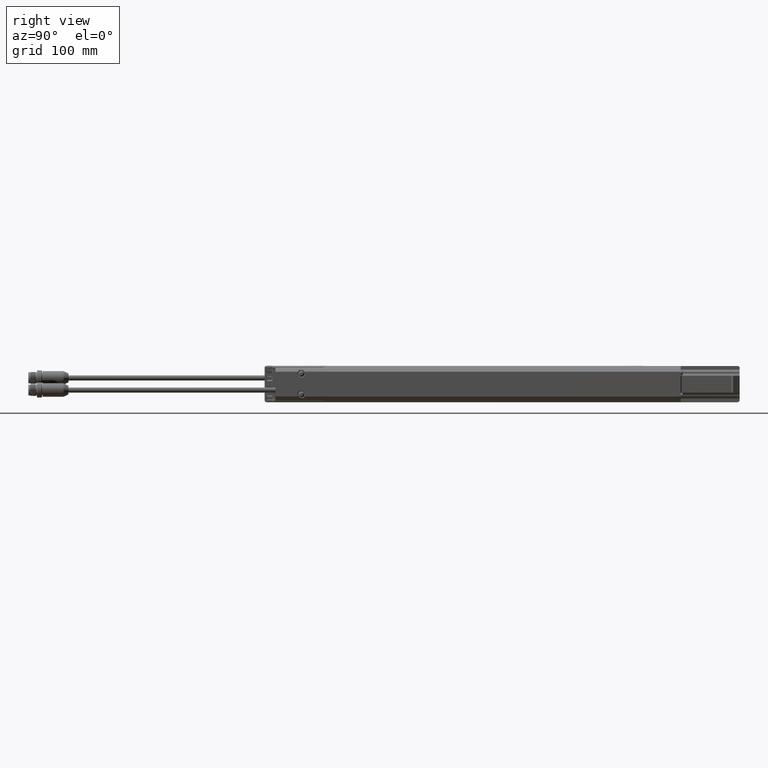
[diagram: clean part render]
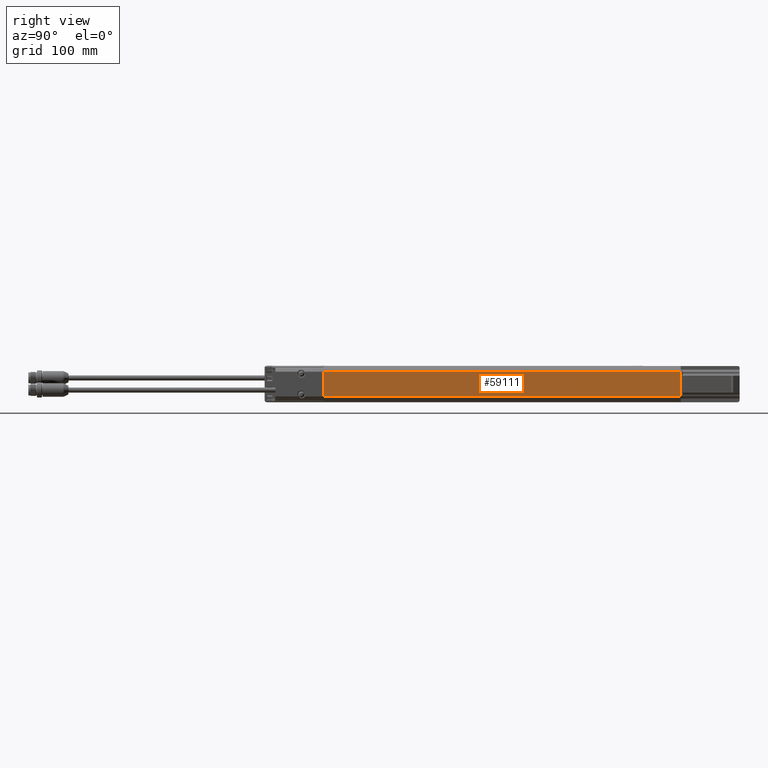
[diagram: same view with one face highlighted and labeled with its STEP entity id]
A machine part, right view. The second image highlights one B-rep face of the part: STEP entity #59111.
In plain terms, the highlighted planar face has unit normal (1, 0, -0).
Its self-contained STEP definition (entity closure, byte-faithful):
#860 = EDGE_CURVE ( 'NONE', #84002, #53982, #82082, .T. ) ;
#4956 = CARTESIAN_POINT ( 'NONE',  ( 2.996062992124106650, 123.2480314960629926, 3.496765431890256289E-14 ) ) ;
#6188 = VERTEX_POINT ( 'NONE', #10072 ) ;
#6625 = DIRECTION ( 'NONE',  ( 1.526109387071235061E-14, -1.000000000000000000, 0.000000000000000000 ) ) ;
#6960 = LINE ( 'NONE', #38361, #20296 ) ;
#7590 = CARTESIAN_POINT ( 'NONE',  ( 2.996062937078350252, 6.793854800375255465, 0.4682873029692488087 ) ) ;
#8476 = CARTESIAN_POINT ( 'NONE',  ( 2.996062992125886115, 6.793854800215196832, 0.6889763779527934284 ) ) ;
#10072 = CARTESIAN_POINT ( 'NONE',  ( 2.996062895803826898, -6.792909963083897829, -0.4682874105053118075 ) ) ;
#11366 = CARTESIAN_POINT ( 'NONE',  ( 2.996062992126090840, -6.673228346456693494, -0.6889763779527244836 ) ) ;
#11489 = LINE ( 'NONE', #22268, #16242 ) ;
#11592 = DIRECTION ( 'NONE',  ( 1.526109377512510285E-14, -0.9999999937365373626, 0.0001119237481305606404 ) ) ;
#12942 = CARTESIAN_POINT ( 'NONE',  ( 2.996062653739326898, 6.673228346456693494, 0.4670012342273386352 ) ) ;
#15767 = CARTESIAN_POINT ( 'NONE',  ( 2.996062653574204759, 6.673228356217677515, -0.4683009132287653808 ) ) ;
#16242 = VECTOR ( 'NONE', #45430, 39.37007874015748143 ) ;
#16527 = EDGE_CURVE ( 'NONE', #73742, #44368, #42466, .T. ) ;
#17998 = CARTESIAN_POINT ( 'NONE',  ( 2.996063117458444669, 6.793854799016574297, -0.4682872565978385970 ) ) ;
#18908 = ORIENTED_EDGE ( 'NONE', *, *, #21608, .F. ) ;
#19155 = VECTOR ( 'NONE', #36359, 39.37007874015748143 ) ;
#19743 = EDGE_CURVE ( 'NONE', #6188, #40399, #69393, .T. ) ;
#20296 = VECTOR ( 'NONE', #69725, 39.37007874015748143 ) ;
#21086 = VERTEX_POINT ( 'NONE', #42906 ) ;
#21608 = EDGE_CURVE ( 'NONE', #47039, #53982, #41227, .T. ) ;
#22103 = ORIENTED_EDGE ( 'NONE', *, *, #98431, .T. ) ;
#22182 = CARTESIAN_POINT ( 'NONE',  ( 2.996062992126090840, -6.713122217981614348, 0.4682963935639479769 ) ) ;
#22268 = CARTESIAN_POINT ( 'NONE',  ( 2.996062992126090840, -6.673228346456693494, -0.6889763779527244836 ) ) ;
#23406 = CARTESIAN_POINT ( 'NONE',  ( 2.996062827379771587, 6.673228346456693494, 0.4683008039302283265 ) ) ;
#23665 = DIRECTION ( 'NONE',  ( -1.526113754567195386E-14, 0.9999999936554333502, -0.0001126460530795446305 ) ) ;
#23920 = VERTEX_POINT ( 'NONE', #26520 ) ;
#23985 = CARTESIAN_POINT ( 'NONE',  ( 2.996062653739326898, 6.673228346456693494, -0.4676510919258890508 ) ) ;
#24604 = VECTOR ( 'NONE', #83374, 39.37007874015748143 ) ;
#25536 = ORIENTED_EDGE ( 'NONE', *, *, #100392, .T. ) ;
#25755 = CARTESIAN_POINT ( 'NONE',  ( 2.996062992125886115, 6.713437163994095513, -0.4682963610002732757 ) ) ;
#26520 = CARTESIAN_POINT ( 'NONE',  ( 2.996062661528945181, -6.673228356215787471, 0.4683009132249535966 ) ) ;
#26886 = EDGE_CURVE ( 'NONE', #47039, #21086, #31331, .T. ) ;
#27420 = VERTEX_POINT ( 'NONE', #45380 ) ;
#30378 = CARTESIAN_POINT ( 'NONE',  ( 2.996062992126090840, -6.792909962472559293, -0.4682874105001015308 ) ) ;
#31315 = EDGE_CURVE ( 'NONE', #44368, #48527, #94054, .T. ) ;
#31331 = LINE ( 'NONE', #100778, #31587 ) ;
#31488 = ORIENTED_EDGE ( 'NONE', *, *, #16527, .T. ) ;
#31587 = VECTOR ( 'NONE', #6625, 39.37007874015748143 ) ;
#32779 = CARTESIAN_POINT ( 'NONE',  ( 2.996062984786208805, 6.793854800279232720, 0.3189601078514114896 ) ) ;
#35865 = LINE ( 'NONE', #74948, #19155 ) ;
#36359 = DIRECTION ( 'NONE',  ( 0.000000000000000000, 0.000000000000000000, 1.000000000000000000 ) ) ;
#37397 = DIRECTION ( 'NONE',  ( -1.526109387071235061E-14, 1.000000000000000000, 0.000000000000000000 ) ) ;
#37646 = CARTESIAN_POINT ( 'NONE',  ( 2.996062653739326898, 6.673228346456693494, 0.4676510190787637744 ) ) ;
#38361 = CARTESIAN_POINT ( 'NONE',  ( 2.996062992124106650, 123.2480314960629926, -0.4663514493758472157 ) ) ;
#40399 = VERTEX_POINT ( 'NONE', #91665 ) ;
#41193 = VERTEX_POINT ( 'NONE', #48902 ) ;
#41227 = B_SPLINE_CURVE_WITH_KNOTS ( 'NONE', 3,
 ( #52017, #12942, #37646, #23406 ),
 .UNSPECIFIED., .F., .F.,
 ( 4, 4 ),
 ( 0.9979186942340360078, 1.000000000000000000 ),
 .UNSPECIFIED. ) ;
#41970 = VERTEX_POINT ( 'NONE', #85895 ) ;
#42466 = B_SPLINE_CURVE_WITH_KNOTS ( 'NONE', 3,
 ( #49878, #25755, #88536, #17998 ),
 .UNSPECIFIED., .F., .F.,
 ( 4, 4 ),
 ( 0.000000000000000000, 1.000000000000000000 ),
 .UNSPECIFIED. ) ;
#42906 = CARTESIAN_POINT ( 'NONE',  ( 2.996062992126090840, -6.673228346456693494, 0.4663514493759172708 ) ) ;
#43943 = ORIENTED_EDGE ( 'NONE', *, *, #48828, .T. ) ;
#44368 = VERTEX_POINT ( 'NONE', #93042 ) ;
#44918 = VECTOR ( 'NONE', #77643, 39.37007874015748143 ) ;
#45016 = EDGE_CURVE ( 'NONE', #21086, #23920, #11489, .T. ) ;
#45243 = CARTESIAN_POINT ( 'NONE',  ( 2.996062957099815183, -6.792909962472559293, 0.6003937007874370346 ) ) ;
#45380 = CARTESIAN_POINT ( 'NONE',  ( 2.996063005481240271, -6.673228346456693494, -0.4683008921620126497 ) ) ;
#45430 = DIRECTION ( 'NONE',  ( 3.885780586188049864E-16, 5.930126228680760615E-30, 1.000000000000000000 ) ) ;
#45511 = B_SPLINE_CURVE_WITH_KNOTS ( 'NONE', 3,
 ( #15767, #23985, #63568, #72313 ),
 .UNSPECIFIED., .F., .F.,
 ( 4, 4 ),
 ( 0.000000000000000000, 0.002081422433278599937 ),
 .UNSPECIFIED. ) ;
#46651 = EDGE_CURVE ( 'NONE', #27420, #41193, #97304, .T. ) ;
#47039 = VERTEX_POINT ( 'NONE', #72618 ) ;
#47712 = DIRECTION ( 'NONE',  ( 0.000000000000000000, 0.000000000000000000, 1.000000000000000000 ) ) ;
#48428 = ORIENTED_EDGE ( 'NONE', *, *, #45016, .T. ) ;
#48527 = VERTEX_POINT ( 'NONE', #73130 ) ;
#48784 = VECTOR ( 'NONE', #23665, 39.37007874015748854 ) ;
#48828 = EDGE_CURVE ( 'NONE', #6188, #27420, #94168, .T. ) ;
#48902 = CARTESIAN_POINT ( 'NONE',  ( 2.996062992126090840, -6.673228346456693494, -0.4663514493758472157 ) ) ;
#49878 = CARTESIAN_POINT ( 'NONE',  ( 2.996062653574204759, 6.673228356217677515, -0.4683009132287653808 ) ) ;
#50284 = EDGE_CURVE ( 'NONE', #73742, #41970, #45511, .T. ) ;
#51754 = FACE_OUTER_BOUND ( 'NONE', #56476, .T. ) ;
#52017 = CARTESIAN_POINT ( 'NONE',  ( 2.996062992125886115, 6.673228346456693494, 0.4663514493759172708 ) ) ;
#53982 = VERTEX_POINT ( 'NONE', #87779 ) ;
#55261 = DIRECTION ( 'NONE',  ( 0.000000000000000000, 0.000000000000000000, 1.000000000000000000 ) ) ;
#55712 = ORIENTED_EDGE ( 'NONE', *, *, #26886, .T. ) ;
#56041 = CARTESIAN_POINT ( 'NONE',  ( 2.996062992126090840, -6.753016089506555630, 0.4682918739283984944 ) ) ;
#56476 = EDGE_LOOP ( 'NONE', ( #78955, #88712, #31488, #72086, #98882, #22103, #77045, #18908, #55712, #48428, #25536, #95002, #43943, #99059 ) ) ;
#56759 = LINE ( 'NONE', #8476, #61465 ) ;
#59111 = ADVANCED_FACE ( 'NONE', ( #51754 ), #75460, .T. ) ;
#61250 = CARTESIAN_POINT ( 'NONE',  ( 2.996062661528945181, -6.673228356215787471, 0.4683009132249535966 ) ) ;
#61465 = VECTOR ( 'NONE', #55261, 39.37007874015748143 ) ;
#62580 = EDGE_CURVE ( 'NONE', #41193, #41970, #6960, .T. ) ;
#63568 = CARTESIAN_POINT ( 'NONE',  ( 2.996062653739326898, 6.673228346456693494, -0.4670012706508606670 ) ) ;
#67648 = CARTESIAN_POINT ( 'NONE',  ( 2.996062992125886115, 6.793854800535473082, 0.4682873029652283581 ) ) ;
#69244 = DIRECTION ( 'NONE',  ( 1.000000000000000000, 1.526109387071235061E-14, -4.060244204343430493E-16 ) ) ;
#69393 = LINE ( 'NONE', #45243, #44918 ) ;
#69725 = DIRECTION ( 'NONE',  ( -1.526109387071235061E-14, 1.000000000000000000, 0.000000000000000000 ) ) ;
#72086 = ORIENTED_EDGE ( 'NONE', *, *, #31315, .T. ) ;
#72313 = CARTESIAN_POINT ( 'NONE',  ( 2.996062822932610725, 6.673228346456693494, -0.4663514493758472157 ) ) ;
#72618 = CARTESIAN_POINT ( 'NONE',  ( 2.996062992125886115, 6.673228346456693494, 0.4663514493759172708 ) ) ;
#73130 = CARTESIAN_POINT ( 'NONE',  ( 2.996062992125882118, 6.793854799985926007, -0.3189601074669070613 ) ) ;
#73742 = VERTEX_POINT ( 'NONE', #92435 ) ;
#74948 = CARTESIAN_POINT ( 'NONE',  ( 2.996062992125886115, 6.793854800215196832, 0.6889763779527934284 ) ) ;
#75460 = PLANE ( 'NONE',  #85652 ) ;
#76003 = VECTOR ( 'NONE', #11592, 39.37007874015748854 ) ;
#77045 = ORIENTED_EDGE ( 'NONE', *, *, #860, .T. ) ;
#77643 = DIRECTION ( 'NONE',  ( 2.959116022391824861E-20, -3.390811105812985190E-18, 1.000000000000000000 ) ) ;
#78955 = ORIENTED_EDGE ( 'NONE', *, *, #62580, .T. ) ;
#82082 = LINE ( 'NONE', #67648, #76003 ) ;
#83374 = DIRECTION ( 'NONE',  ( 3.885780586188049864E-16, 5.930126228680760615E-30, 1.000000000000000000 ) ) ;
#84002 = VERTEX_POINT ( 'NONE', #7590 ) ;
#85652 = AXIS2_PLACEMENT_3D ( 'NONE', #4956, #69244, #37397 ) ;
#85895 = CARTESIAN_POINT ( 'NONE',  ( 2.996062822932610725, 6.673228346456693494, -0.4663514493758472157 ) ) ;
#87779 = CARTESIAN_POINT ( 'NONE',  ( 2.996062827379771587, 6.673228346456693494, 0.4683008039302283265 ) ) ;
#88536 = CARTESIAN_POINT ( 'NONE',  ( 2.996062992125886115, 6.753645981531457565, -0.4682918087984960787 ) ) ;
#88712 = ORIENTED_EDGE ( 'NONE', *, *, #50284, .F. ) ;
#89660 = B_SPLINE_CURVE_WITH_KNOTS ( 'NONE', 3,
 ( #61250, #22182, #56041, #94721 ),
 .UNSPECIFIED., .F., .F.,
 ( 4, 4 ),
 ( 0.000000000000000000, 1.000000000000000000 ),
 .UNSPECIFIED. ) ;
#90693 = VERTEX_POINT ( 'NONE', #32779 ) ;
#91665 = CARTESIAN_POINT ( 'NONE',  ( 2.996063138490295596, -6.792909961031022625, 0.4682873542944220313 ) ) ;
#92435 = CARTESIAN_POINT ( 'NONE',  ( 2.996062653574204759, 6.673228356217677515, -0.4683009132287653808 ) ) ;
#93042 = CARTESIAN_POINT ( 'NONE',  ( 2.996063117458444669, 6.793854799016574297, -0.4682872565978385970 ) ) ;
#94054 = LINE ( 'NONE', #101253, #95172 ) ;
#94168 = LINE ( 'NONE', #30378, #48784 ) ;
#94610 = EDGE_CURVE ( 'NONE', #48527, #90693, #56759, .T. ) ;
#94721 = CARTESIAN_POINT ( 'NONE',  ( 2.996063138490295596, -6.792909961031022625, 0.4682873542944220313 ) ) ;
#95002 = ORIENTED_EDGE ( 'NONE', *, *, #19743, .F. ) ;
#95172 = VECTOR ( 'NONE', #47712, 39.37007874015748143 ) ;
#97304 = LINE ( 'NONE', #11366, #24604 ) ;
#98431 = EDGE_CURVE ( 'NONE', #90693, #84002, #35865, .T. ) ;
#98882 = ORIENTED_EDGE ( 'NONE', *, *, #94610, .T. ) ;
#99059 = ORIENTED_EDGE ( 'NONE', *, *, #46651, .T. ) ;
#100392 = EDGE_CURVE ( 'NONE', #23920, #40399, #89660, .T. ) ;
#100778 = CARTESIAN_POINT ( 'NONE',  ( 2.996062992124106650, 123.2480314960629926, 0.4663514493759172708 ) ) ;
#101253 = CARTESIAN_POINT ( 'NONE',  ( 2.996062992125886115, 6.793854799068819617, 0.6889763779527934284 ) ) ;